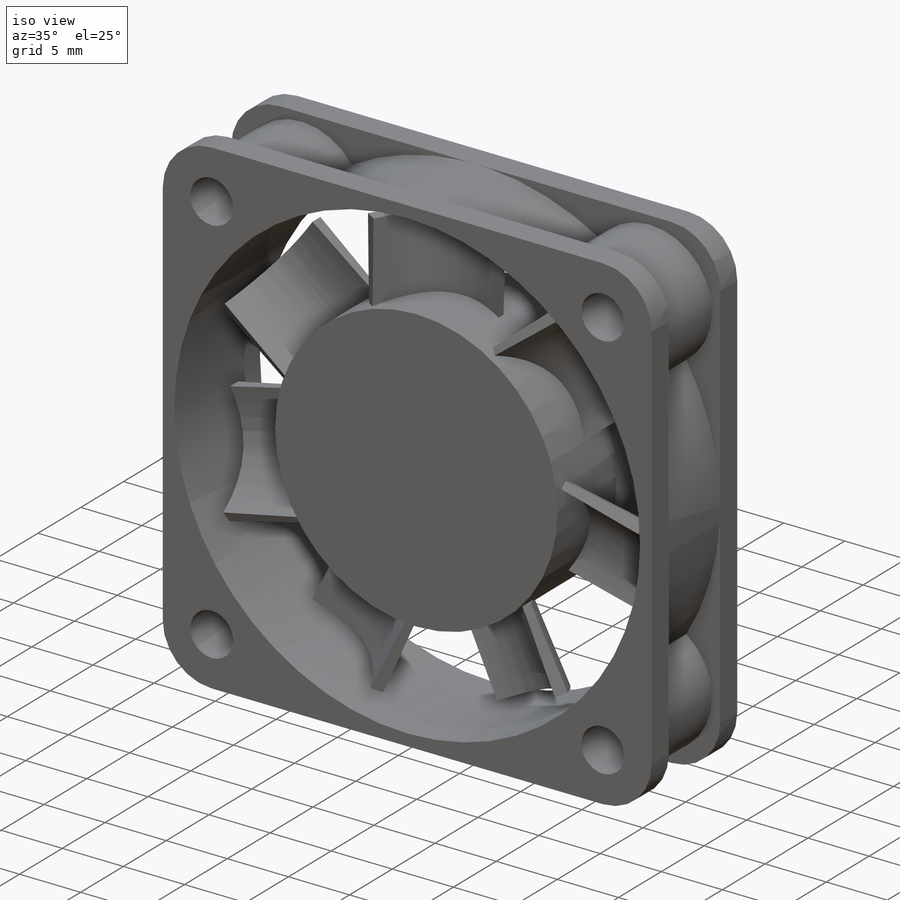
[diagram: iso view]
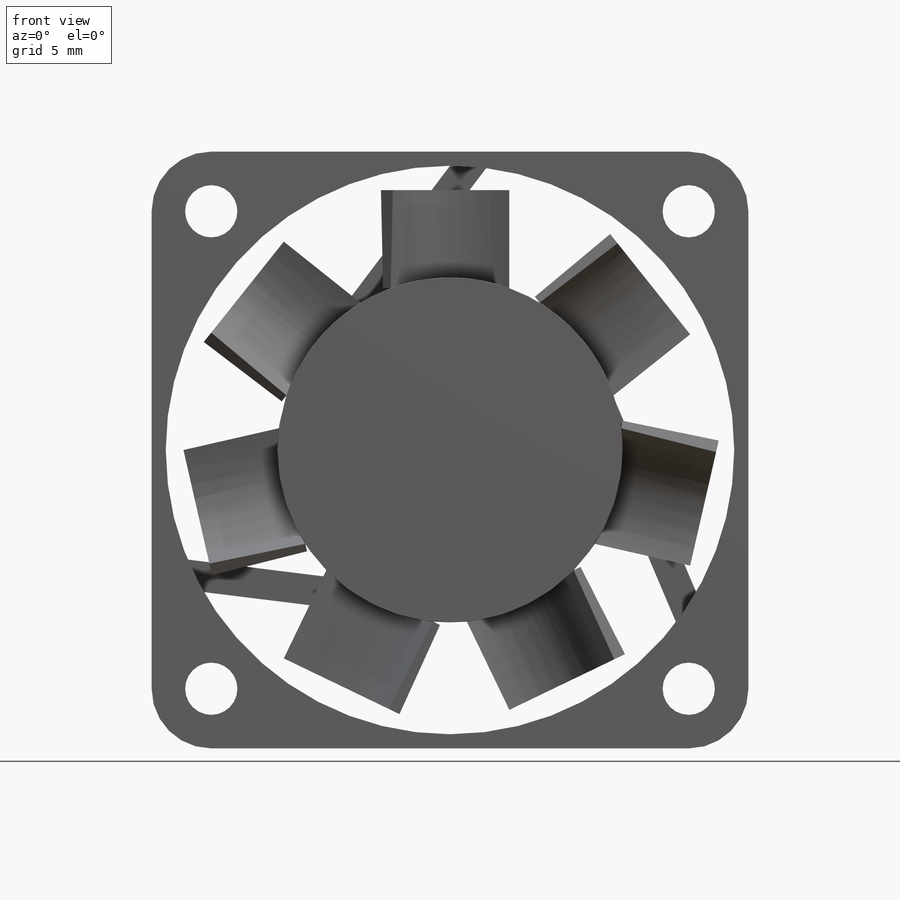
[diagram: front view]
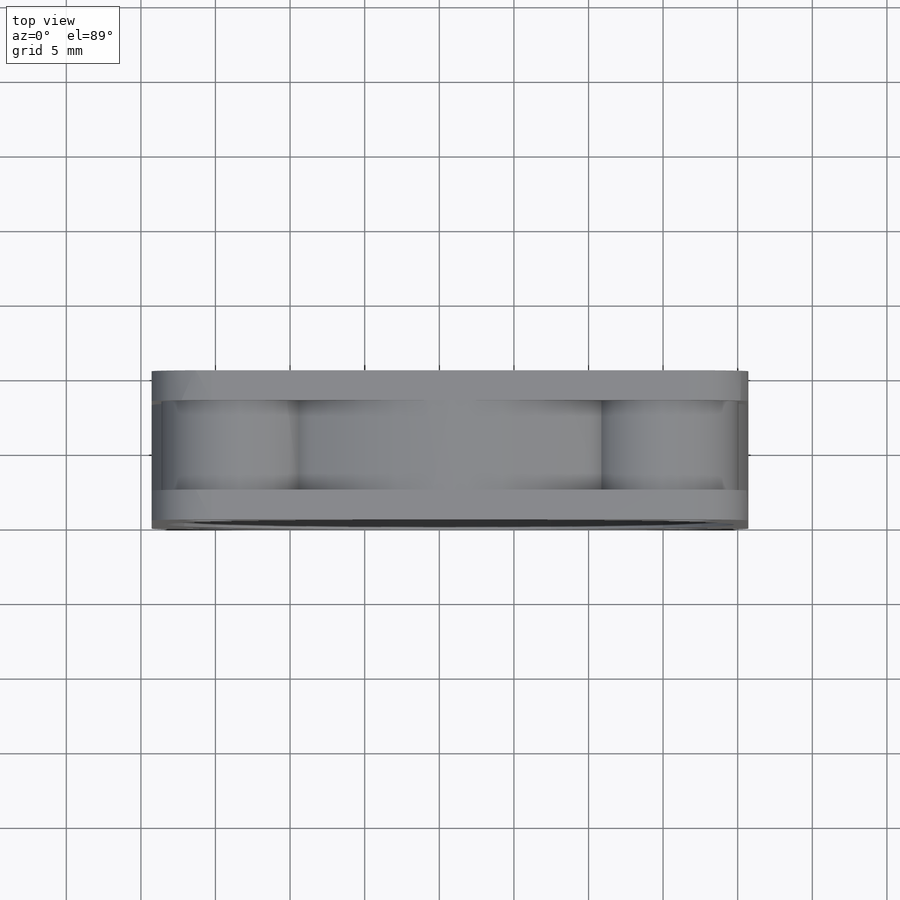
[diagram: top view]
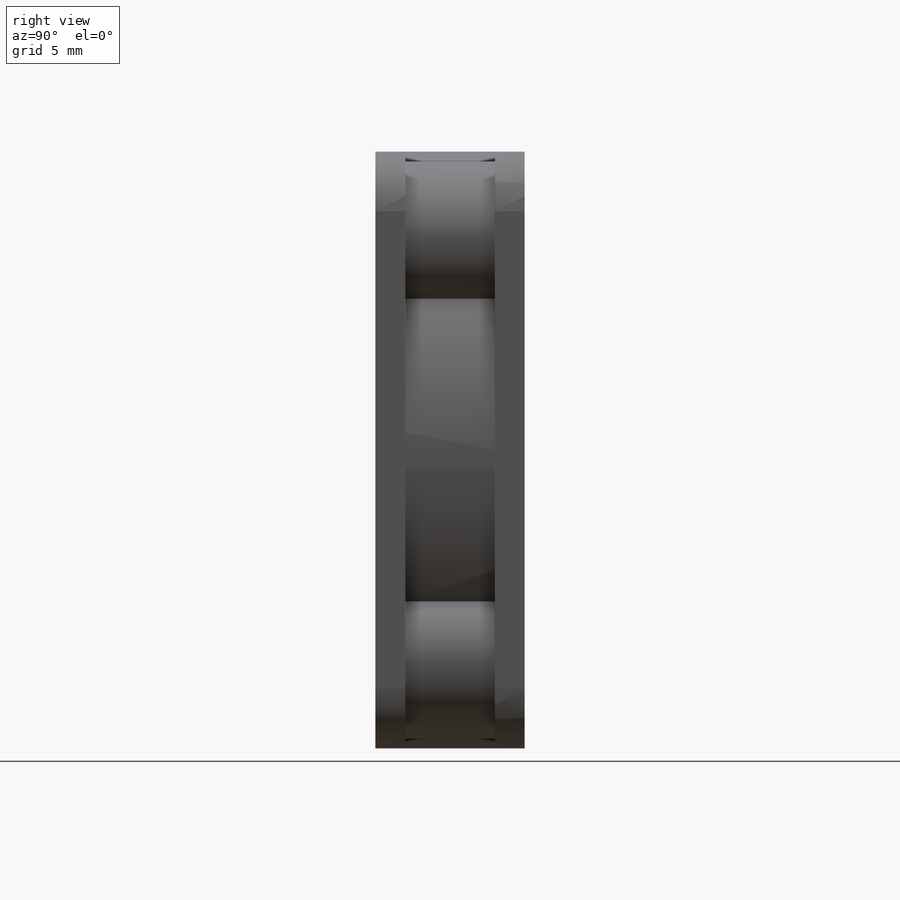
[diagram: right view]
SOLIDWORKS PART (.sldprt)
format: sldprt  version: not decoded by parser v0  size: 567,808 bytes
history: native  units: mm
features: sketch x12, extrude x4, plane x3, fillet x2, material x1, pattern_circular x1, cut_extrude x1 (+13 scaffold rows collapsed)
feature tree (37):
  scaffold x13  (default folders/planes/origin — collapsed)
  material  "Material <not specified>"
  sketch  "Sketch1"  dims[c1.D6=~7.651848mm c1.D3=~8.974186mm c1.D1=8.636mm c1.D2=9.144mm c2.D3=~1.474386mm c3.D3=90.0deg c3.D4=~1.55262mm c4.D4=50.0deg c4.D5=0.5969mm c5.D4=0.5969mm c5.D2=~0.554541mm c6.D2=~158.284867deg c7.D2=0.5969mm c8.D2=~65.284867deg c9.D2=0.5969mm c10.D2=58.67deg c10.D3=3.556mm c10.D6=0.5969mm c10.D7=~16.032559mm c11.D7=29.335deg c11.D8=~16.032559mm c12.D8=29.335deg c13.D8=~14.779676mm c13.D5=0.5969mm c13.D6=~0.646856mm c13.D3=~6.370565mm c14.D3=29.335deg c15.D3=~9.217525mm]
  plane  "Plane1"
  sketch  "Sketch2"  dims[D1=~0.93218mm D2=6.5659mm]
  plane  "Plane2"
  sketch  "Sketch4"  dims[D1=6.5659mm D2=~0.93218mm]
  plane  "Plane3"
  sketch  "Sketch5"  dims[D1=~0.93218mm D2=6.5659mm]
  sketch  "Sketch7"  dims[D1=23.114mm]
  extrude  "Boss-Extrude1"  Depth=7.874mm
  pattern_circular  "CirPattern1"  Count=7 Angle=360deg
  sketch  "Sketch9"  dims[c1.D3=38.1mm c1.D1=40.0mm c1.D2=40.0mm c1.D4=2.032mm c1.D5=2.032mm c2.D4=~10.267278mm c3.D4=~176.478058deg c4.D4=2.032mm c4.D5=2.032mm c5.D4=2.032mm c5.D5=7.62mm c5.D6=3.0]
  extrude  "Boss-Extrude2"  Depth=2mm
  sketch  "Sketch10"  dims[c1.D1=5.08mm c1.D4=20.0mm c1.D2=10.033mm c2.D4=20.066mm c2.D3=4.0]
  extrude  "Boss-Extrude5"  Depth=6mm
  sketch  "Sketch11"
  extrude  "Boss-Extrude6"  Depth=2mm
  sketch  "Sketch12"  dims[c1.D2=3.5mm c1.D1=32.0mm c2.D2=~34.266492mm]
  cut_extrude  "Cut-Extrude1"  [1 undecoded]
  fillet  "Fillet1"  Radius=4mm
  sketch  "Sketch13"  dims[D1=1.27mm D2=1.27mm D3=~2.583695mm]
  sketch  "0_0_Point"  dims[Diameter=2.0mm Width=0.0 Depth=0.0 StubLength=2.0mm]
  sketch  "0_1_Point"
  fillet  "Axis2"  Radius=2mm Diameter=2mm Width=0 Depth=0 StubLength=2mm
decode coverage: 17 of 20 modeling features carry decoded parameters
note: ~ marks probable driven/reference dimensions
note: 1 parameter value undecoded
note: suppression state not decoded; provenance and decode notes live in map.json
